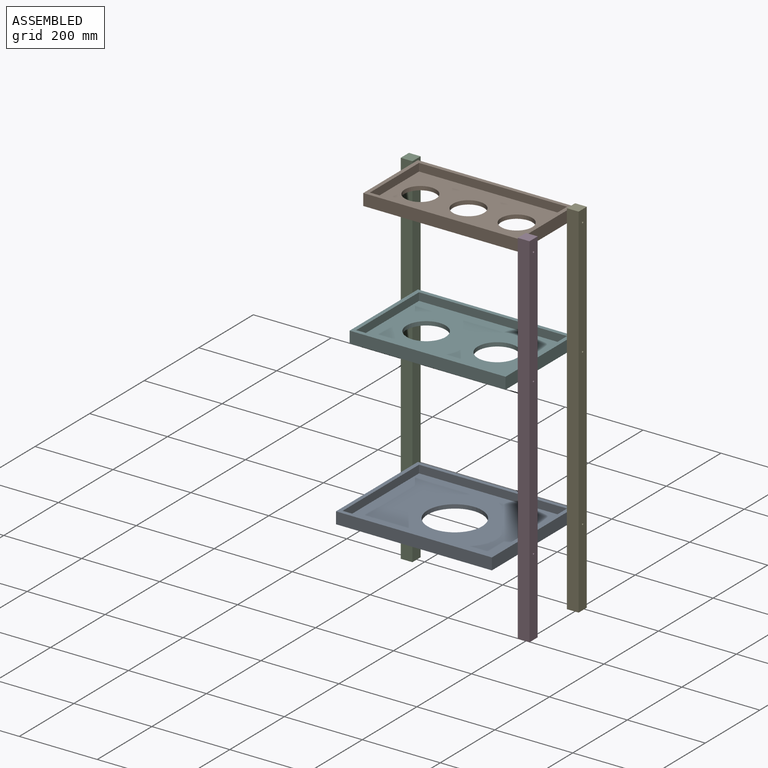
[diagram: assembled view]
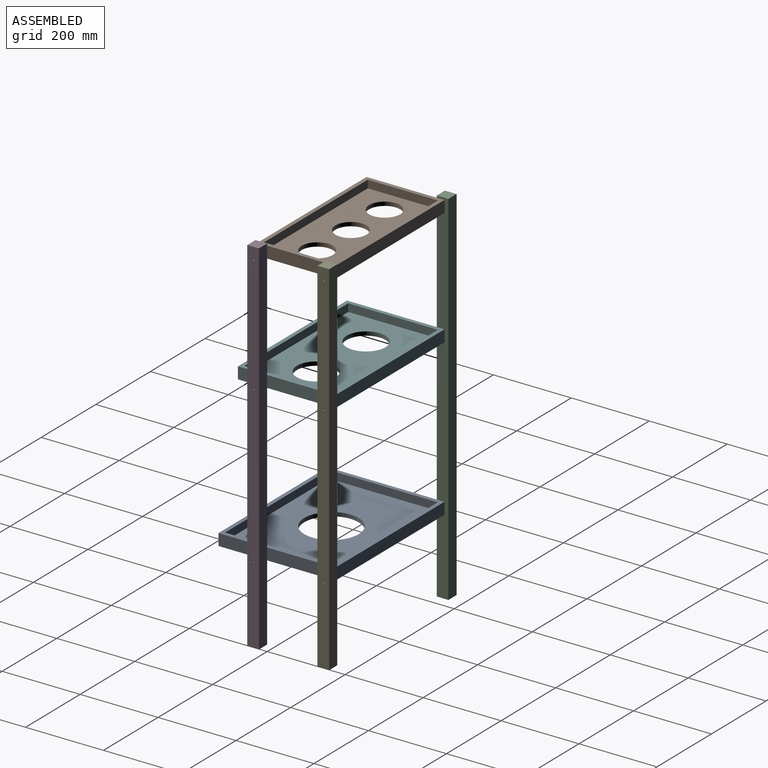
[diagram: assembled view, second angle]
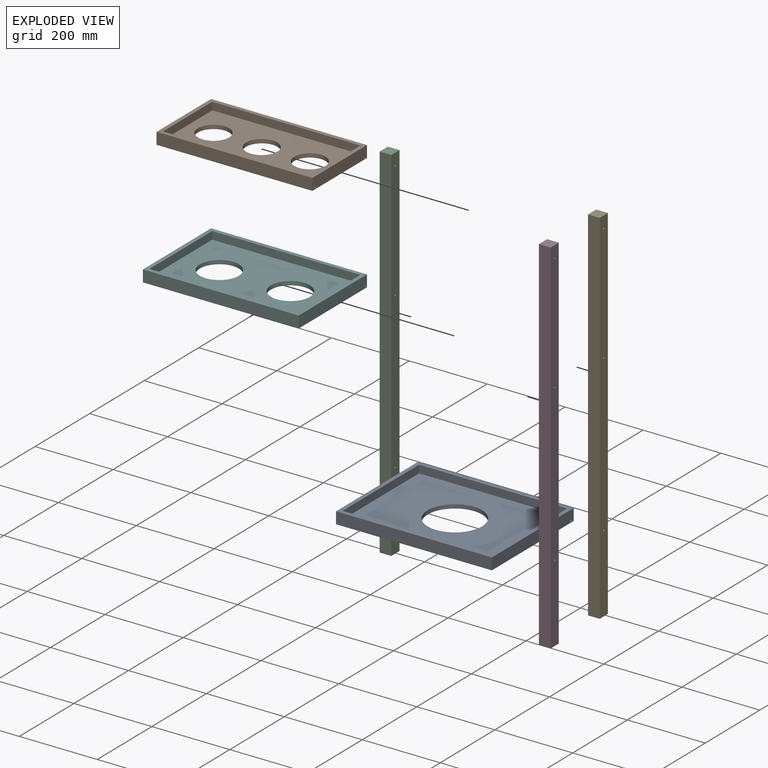
[diagram: exploded view]
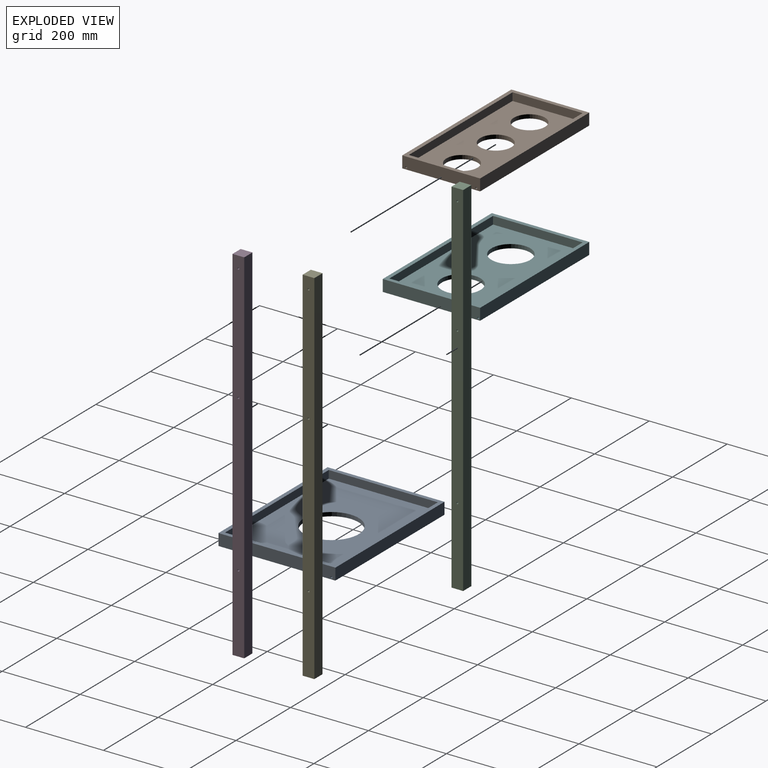
[diagram: exploded view, second angle]
ASSEMBLY  parts=6 mates=5
PART A: 16 faces, bbox 400x300x30 mm
  f0: plane 400x30mm, normal (0,-1,0), area 12000mm2, adj f1,f7,f8,f10
  f1: plane 300x30mm, normal (1,0,0), area 8980.4mm2, adj f0,f2,f8,f10,f12
  f2: plane 400x30mm, normal (0,1,0), area 12000mm2, adj f1,f7,f8,f10
  f3: plane 280x20mm, normal (-1,0,0), area 5600mm2, adj f4,f6,f8,f11
  f4: plane 380x20mm, normal (0,1,0), area 7600mm2, adj f3,f5,f8,f11
  f5: plane 280x20mm, normal (1,0,0), area 5600mm2, adj f4,f6,f8,f11
  f6: plane 380x20mm, normal (0,-1,0), area 7600mm2, adj f3,f5,f8,f11
  f7: plane 300x30mm, normal (-1,0,0), area 8980.4mm2, adj f0,f2,f8,f10,f14
  f8: plane 400x300mm, normal (0,0,1), area 13600mm2, adj f0,f1,f2,f3,f4,f5,f6,f7
  f9: cylinder r=70mm len=140mm, axis (0,0,1), area 4398.2mm2, adj f10,f11
  f10: plane 400x300mm, normal (0,0,-1), area 104606.2mm2, adj f0,f1,f2,f7,f9
  f11: plane 380x280mm, normal (0,0,1), area 91006.2mm2, adj f3,f4,f5,f6,f9
  f12: cylinder r=2.5mm len=15mm, axis (1,0,0), area 235.6mm2, adj f1,f13
  f13: plane 5x5mm, normal (1,0,0), area 19.6mm2, adj f12
  f14: cylinder r=2.5mm len=15mm, axis (-1,0,0), area 235.6mm2, adj f7,f15
  f15: plane 5x5mm, normal (-1,0,0), area 19.6mm2, adj f14
PART B: 22 faces, bbox 400x200x30 mm
  f0: plane 200x30mm, normal (-1,0,0), area 5960.7mm2, adj f3,f4,f5,f6,f18,f20
  f1: plane 200x30mm, normal (1,0,0), area 5960.7mm2, adj f3,f4,f5,f6,f14,f16
  f2: plane 380x180mm, normal (0,0,1), area 53320.4mm2, adj f7,f8,f9,f10,f11,f12,f13
  f3: plane 400x200mm, normal (0,0,-1), area 64920.4mm2, adj f0,f1,f5,f6,f11,f12,f13
  f4: plane 400x200mm, normal (0,0,1), area 11600mm2, adj f0,f1,f5,f6,f7,f8,f9,f10
  f5: plane 400x30mm, normal (0,1,0), area 12000mm2, adj f0,f1,f3,f4
  f6: plane 400x30mm, normal (0,-1,0), area 12000mm2, adj f0,f1,f3,f4
  f7: plane 380x20mm, normal (0,1,0), area 7600mm2, adj f2,f4,f8,f10
  f8: plane 180x20mm, normal (-1,0,0), area 3600mm2, adj f2,f4,f7,f9
  f9: plane 380x20mm, normal (0,-1,0), area 7600mm2, adj f2,f4,f8,f10
  f10: plane 180x20mm, normal (1,0,0), area 3600mm2, adj f2,f4,f7,f9
  f11: cylinder r=40mm len=80mm, axis (0,0,1), area 2513.3mm2, adj f2,f3
  f12: cylinder r=40mm len=80mm, axis (0,0,1), area 2513.3mm2, adj f2,f3
  f13: cylinder r=40mm len=80mm, axis (0,0,1), area 2513.3mm2, adj f2,f3
  f14: cylinder r=2.5mm len=15mm, axis (1,0,0), area 235.6mm2, adj f1,f15
  f15: plane 5x5mm, normal (1,0,0), area 19.6mm2, adj f14
  f16: cylinder r=2.5mm len=15mm, axis (1,0,0), area 235.6mm2, adj f1,f17
  f17: plane 5x5mm, normal (1,0,0), area 19.6mm2, adj f16
  f18: cylinder r=2.5mm len=15mm, axis (-1,0,0), area 235.6mm2, adj f0,f19
  f19: plane 5x5mm, normal (-1,0,0), area 19.6mm2, adj f18
  f20: cylinder r=2.5mm len=15mm, axis (-1,0,0), area 235.6mm2, adj f0,f21
  f21: plane 5x5mm, normal (-1,0,0), area 19.6mm2, adj f20
PART C: 9 faces, bbox 30x30x930 mm
  f0: plane 930x30mm, normal (0,-1,0), area 27900mm2, adj f1,f3,f4,f5
  f1: plane 930x30mm, normal (1,0,0), area 27841.1mm2, adj f0,f2,f4,f5,f6,f7,f8
  f2: plane 930x30mm, normal (0,1,0), area 27900mm2, adj f1,f3,f4,f5
  f3: plane 930x30mm, normal (-1,0,0), area 27841.1mm2, adj f0,f2,f4,f5,f6,f7,f8
  f4: plane 30x30mm, normal (0,0,1), area 900mm2, adj f0,f1,f2,f3
  f5: plane 30x30mm, normal (0,0,-1), area 900mm2, adj f0,f1,f2,f3
  f6: cylinder r=2.5mm len=30mm, axis (1,0,0), area 471.2mm2, adj f1,f3
  f7: cylinder r=2.5mm len=30mm, axis (1,0,0), area 471.2mm2, adj f1,f3
  f8: cylinder r=2.5mm len=30mm, axis (1,0,0), area 471.2mm2, adj f1,f3
PART D: same geometry as C
PART E: same geometry as C
PART F: 19 faces, bbox 400x250x30 mm
  f0: plane 400x250mm, normal (0,0,-1), area 84292mm2, adj f2,f3,f4,f5,f11,f12
  f1: plane 400x250mm, normal (0,0,1), area 12600mm2, adj f2,f3,f4,f5,f6,f7,f8,f9
  f2: plane 400x30mm, normal (0,-1,0), area 12000mm2, adj f0,f1,f3,f5
  f3: plane 250x30mm, normal (1,0,0), area 7480.4mm2, adj f0,f1,f2,f4,f15
  f4: plane 400x30mm, normal (0,1,0), area 12000mm2, adj f0,f1,f3,f5
  f5: plane 250x30mm, normal (-1,0,0), area 7460.7mm2, adj f0,f1,f2,f4,f13,f17
  f6: plane 380x20mm, normal (0,1,0), area 7600mm2, adj f1,f7,f9,f10
  f7: plane 230x20mm, normal (-1,0,0), area 4600mm2, adj f1,f6,f8,f10
  f8: plane 380x20mm, normal (0,-1,0), area 7600mm2, adj f1,f7,f9,f10
  f9: plane 230x20mm, normal (1,0,0), area 4600mm2, adj f1,f6,f8,f10
  f10: plane 380x230mm, normal (0,0,1), area 71692mm2, adj f6,f7,f8,f9,f11,f12
  f11: cylinder r=50mm len=100mm, axis (0,0,1), area 3141.6mm2, adj f0,f10
  f12: cylinder r=50mm len=100mm, axis (0,0,1), area 3141.6mm2, adj f0,f10
  f13: cylinder r=2.5mm len=15mm, axis (-1,0,0), area 235.6mm2, adj f5,f14
  f14: plane 5x5mm, normal (-1,0,0), area 19.6mm2, adj f13
  f15: cylinder r=2.5mm len=15mm, axis (1,0,0), area 235.6mm2, adj f3,f16
  f16: plane 5x5mm, normal (1,0,0), area 19.6mm2, adj f15
  f17: cylinder r=2.5mm len=15mm, axis (-1,0,0), area 235.6mm2, adj f5,f18
  f18: plane 5x5mm, normal (-1,0,0), area 19.6mm2, adj f17
PLACE A t=(0,25,-775)mm fixed
PLACE B t=(0,75,-85)mm
PLACE C t=(-215,170,-980)mm
PLACE D t=(215,-15,-980)mm
PLACE E t=(215,165,-980)mm
PLACE F t=(0,50,-385)mm
MATE revolute C.f8 <-> A.f14  axis (1,0,0) through (-200,170,-780)mm
MATE revolute E.f6 <-> B.f16  axis (-1,0,0) through (200,165,-80)mm
MATE revolute F.f15 <-> C.f7  axis (-1,0,0) through (-200,170,-380)mm
MATE revolute E.f8 <-> A.f12  axis (-1,0,0) through (200,165,-780)mm
MATE revolute D.f6 <-> B.f14  axis (-1,0,0) through (200,-15,-80)mm
